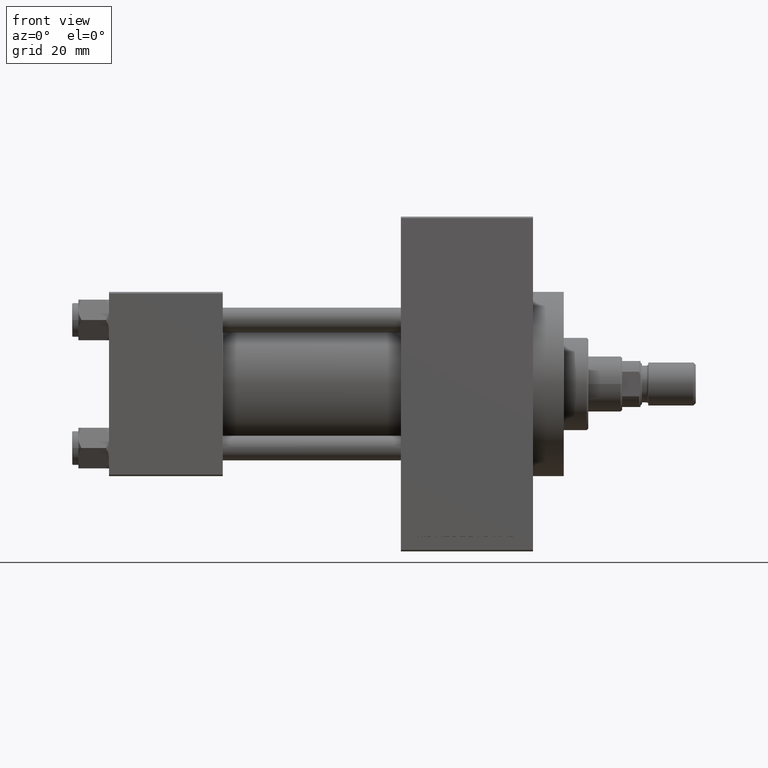
[diagram: clean part render]
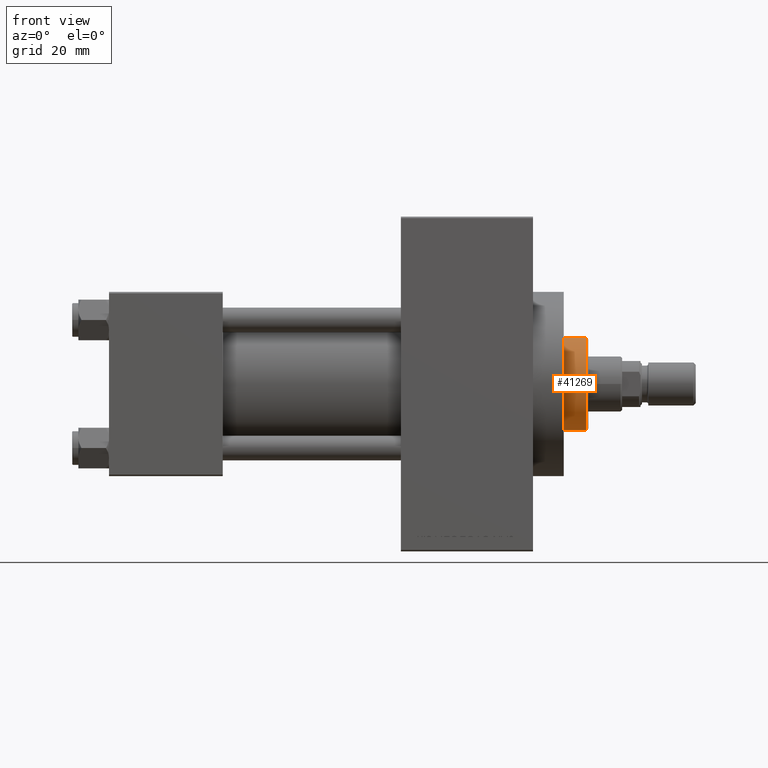
[diagram: same view with one face highlighted and labeled with its STEP entity id]
A machine part, front view. The second image highlights one B-rep face of the part: STEP entity #41269.
In plain terms, the highlighted cylindrical surface (partial cylindrical patch) has radius 15 mm, axis along (-1, 0, 0).
Its self-contained STEP definition (entity closure, byte-faithful):
#553 = CARTESIAN_POINT ( 'NONE',  ( 15.00000000000000000, 1.836970198721029589E-15, 43.25999999999999801 ) ) ;
#941 = VECTOR ( 'NONE', #7632, 1000.000000000000000 ) ;
#1464 = DIRECTION ( 'NONE',  ( -0.000000000000000000, -0.000000000000000000, -1.000000000000000000 ) ) ;
#3621 = VERTEX_POINT ( 'NONE', #31972 ) ;
#4462 = CIRCLE ( 'NONE', #19864, 15.00000000000000000 ) ;
#4945 = CIRCLE ( 'NONE', #28843, 15.00000000000000000 ) ;
#5914 = EDGE_CURVE ( 'NONE', #3621, #18856, #4462, .T. ) ;
#7632 = DIRECTION ( 'NONE',  ( -0.000000000000000000, -0.000000000000000000, -1.000000000000000000 ) ) ;
#8244 = DIRECTION ( 'NONE',  ( 0.000000000000000000, 0.000000000000000000, -1.000000000000000000 ) ) ;
#10612 = DIRECTION ( 'NONE',  ( 1.000000000000000000, 0.000000000000000000, 0.000000000000000000 ) ) ;
#12145 = EDGE_CURVE ( 'NONE', #3621, #46058, #23080, .T. ) ;
#12552 = DIRECTION ( 'NONE',  ( -1.000000000000000000, 0.000000000000000000, 0.000000000000000000 ) ) ;
#15036 = VECTOR ( 'NONE', #40296, 1000.000000000000000 ) ;
#18736 = CARTESIAN_POINT ( 'NONE',  ( -15.00000000000000000, 0.000000000000000000, 51.25999999999999801 ) ) ;
#18856 = VERTEX_POINT ( 'NONE', #21659 ) ;
#19791 = CYLINDRICAL_SURFACE ( 'NONE', #24216, 15.00000000000000000 ) ;
#19864 = AXIS2_PLACEMENT_3D ( 'NONE', #45159, #8244, #23213 ) ;
#21659 = CARTESIAN_POINT ( 'NONE',  ( 15.00000000000000000, 1.836970198721029589E-15, 50.75999999999998380 ) ) ;
#22256 = ORIENTED_EDGE ( 'NONE', *, *, #30450, .T. ) ;
#23080 = LINE ( 'NONE', #18736, #941 ) ;
#23213 = DIRECTION ( 'NONE',  ( 1.000000000000000000, 0.000000000000000000, 0.000000000000000000 ) ) ;
#23511 = ORIENTED_EDGE ( 'NONE', *, *, #32864, .T. ) ;
#23914 = ORIENTED_EDGE ( 'NONE', *, *, #5914, .T. ) ;
#24216 = AXIS2_PLACEMENT_3D ( 'NONE', #27743, #1464, #12552 ) ;
#24877 = CARTESIAN_POINT ( 'NONE',  ( 15.00000000000000000, 1.836970198721029589E-15, 51.25999999999999801 ) ) ;
#27743 = CARTESIAN_POINT ( 'NONE',  ( 0.000000000000000000, 0.000000000000000000, 51.25999999999999801 ) ) ;
#28490 = LINE ( 'NONE', #24877, #15036 ) ;
#28843 = AXIS2_PLACEMENT_3D ( 'NONE', #36652, #40747, #10612 ) ;
#30450 = EDGE_CURVE ( 'NONE', #45156, #46058, #4945, .T. ) ;
#31009 = EDGE_LOOP ( 'NONE', ( #23914, #23511, #22256, #46360 ) ) ;
#31972 = CARTESIAN_POINT ( 'NONE',  ( -15.00000000000000000, 0.000000000000000000, 50.75999999999998380 ) ) ;
#32864 = EDGE_CURVE ( 'NONE', #18856, #45156, #28490, .T. ) ;
#36652 = CARTESIAN_POINT ( 'NONE',  ( 0.000000000000000000, 0.000000000000000000, 43.25999999999999801 ) ) ;
#38607 = FACE_OUTER_BOUND ( 'NONE', #31009, .T. ) ;
#40296 = DIRECTION ( 'NONE',  ( -0.000000000000000000, -0.000000000000000000, -1.000000000000000000 ) ) ;
#40747 = DIRECTION ( 'NONE',  ( 0.000000000000000000, 0.000000000000000000, 1.000000000000000000 ) ) ;
#41269 = ADVANCED_FACE ( 'NONE', ( #38607 ), #19791, .T. ) ;
#43882 = CARTESIAN_POINT ( 'NONE',  ( -15.00000000000000000, 0.000000000000000000, 43.25999999999999801 ) ) ;
#45156 = VERTEX_POINT ( 'NONE', #553 ) ;
#45159 = CARTESIAN_POINT ( 'NONE',  ( 0.000000000000000000, 0.000000000000000000, 50.75999999999998380 ) ) ;
#46058 = VERTEX_POINT ( 'NONE', #43882 ) ;
#46360 = ORIENTED_EDGE ( 'NONE', *, *, #12145, .F. ) ;